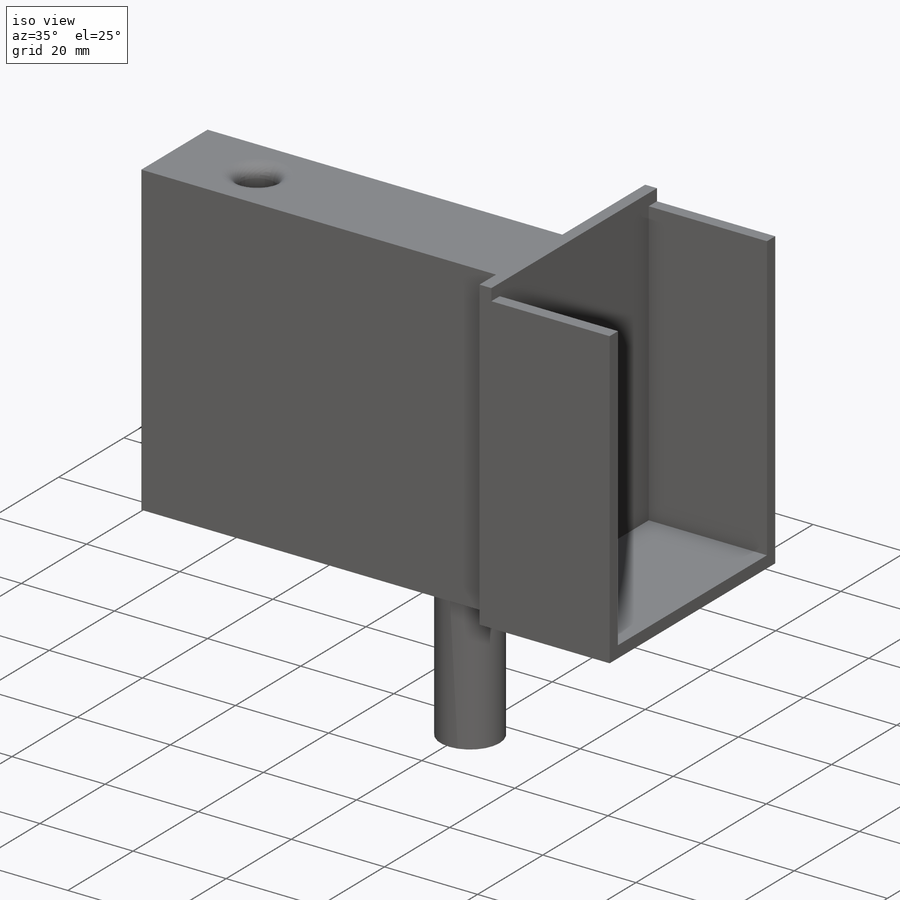
[diagram: iso view]
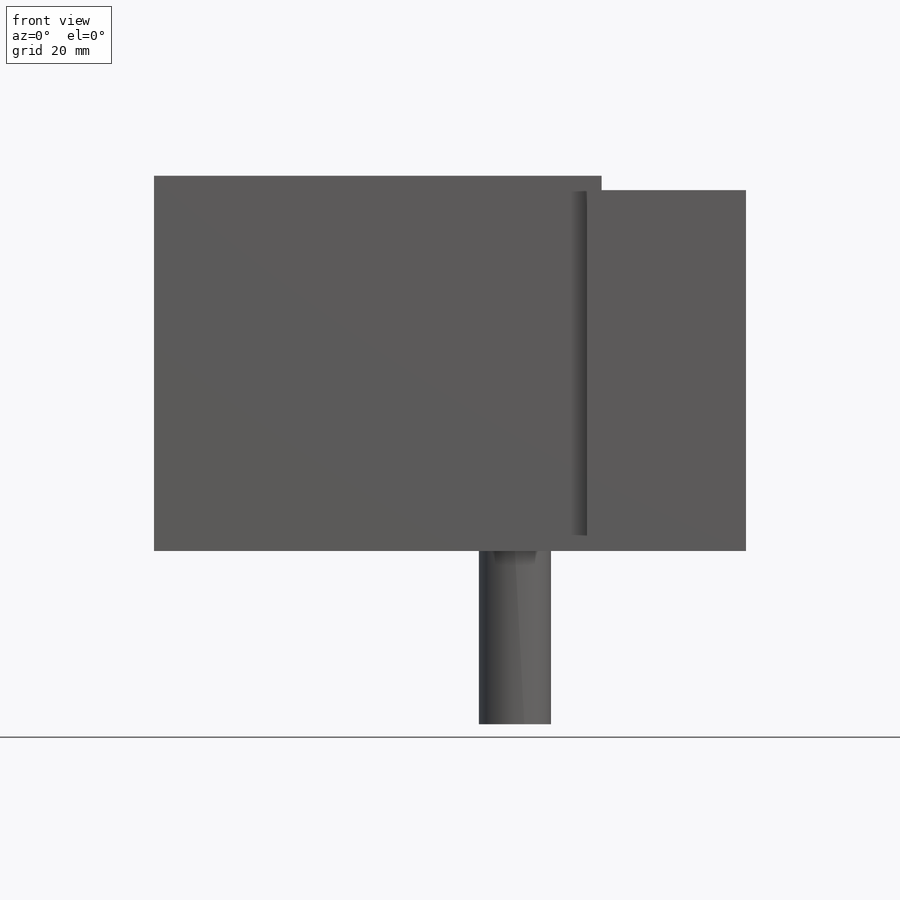
[diagram: front view]
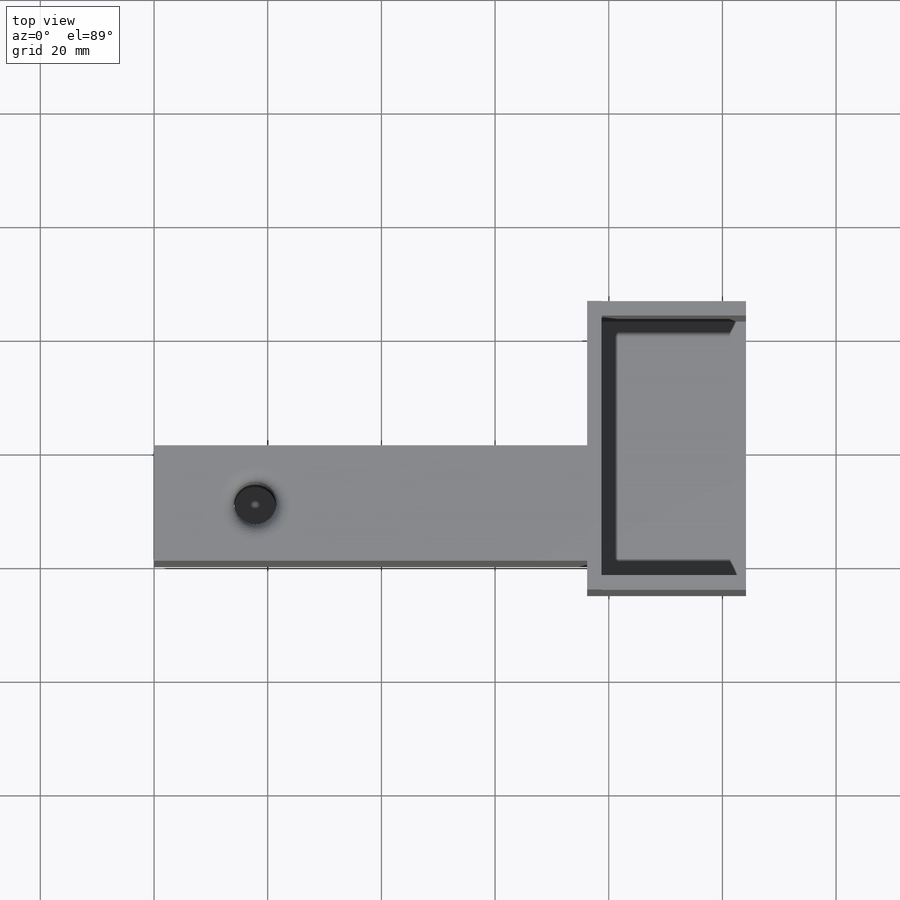
[diagram: top view]
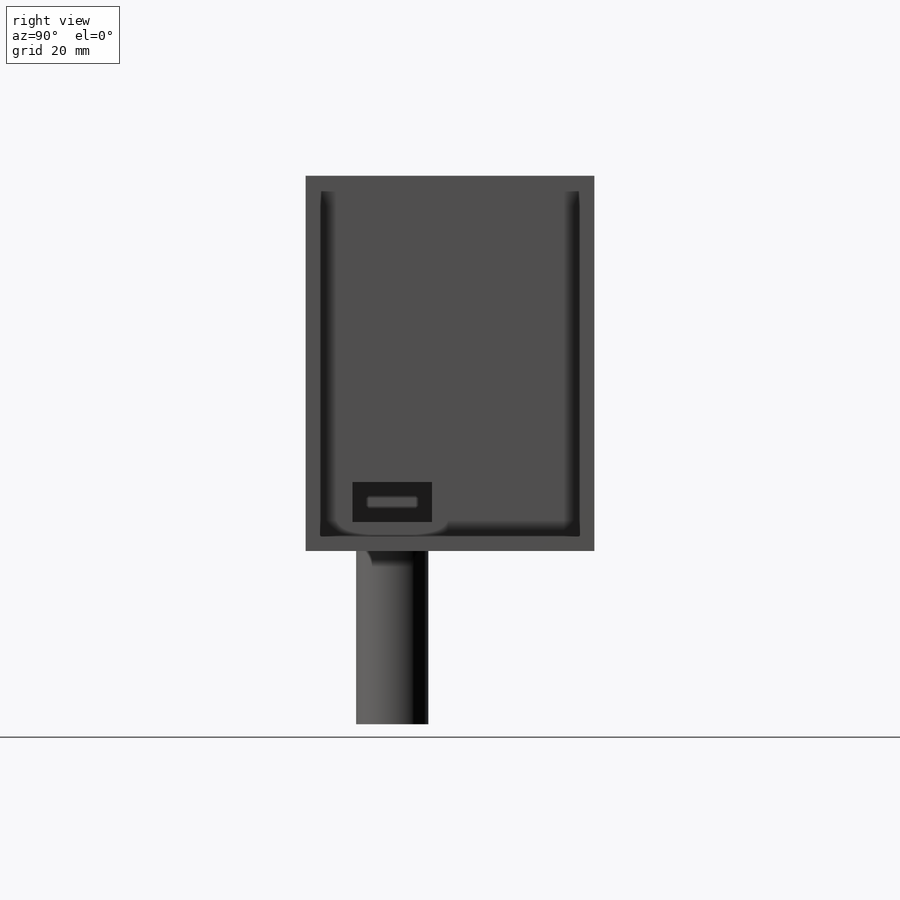
[diagram: right view]
SOLIDWORKS PART (.sldprt)
format: sldprt  version: not decoded by parser v0  size: 279,552 bytes
history: native  units: mm
features: sketch x7, extrude x4, cut_extrude x3, material x1, fillet x1 (+13 scaffold rows collapsed)
feature tree (29):
  scaffold x13  (default folders/planes/origin — collapsed)
  material  "Material <not specified>"
  sketch  "Sketch1"  dims[D1=66.04mm D2=76.2mm]
  extrude  "Boss-Extrude1"  Depth=20.32mm
  sketch  "Sketch2"  dims[D3=7.5mm D1=17.78mm D2=0.0mm]
  cut_extrude  "Cut-Extrude1"  Depth=57.15mm
  sketch  "Sketch3"  dims[c1.D1=5.08mm c1.D2=2.54mm c1.D3=2.54mm c1.D4=14.0mm c2.D2=14.0mm c2.D3=7.0mm c2.D5=10.16mm c2.D1=60.96mm c2.D6=12.7mm c2.D7=25.4mm c3.D6=3.16mm]
  sketch  "Sketch4"  dims[c1.D1=8.0mm c1.D2=8.0mm c1.D3=15.24mm c1.D4=10.16mm c2.D3=10.16mm]
  cut_extrude  "Cut-Extrude4"  Depth=5.08mm
  fillet  "Fillet2"  Radius=2.54mm
  sketch  "Sketch5"  dims[D1=50.8mm D2=5.08mm]
  extrude  "Boss-Extrude2"  Depth=2.54mm
  sketch  "Sketch6"  dims[D1=2.54mm D2=2.54mm D3=2.54mm D4=2.54mm D5=2.54mm D6=0.0mm]
  extrude  "Boss-Extrude3"  Depth=25.4mm
  cut_extrude  "Cut-Extrude5"  Depth=73.66mm
  sketch  "Sketch7"  dims[D1=10.16mm D2=40.64mm]
  extrude  "Boss-Extrude4"  Depth=30.48mm
decode coverage: 15 of 15 modeling features carry decoded parameters
note: suppression state not decoded; provenance and decode notes live in map.json
